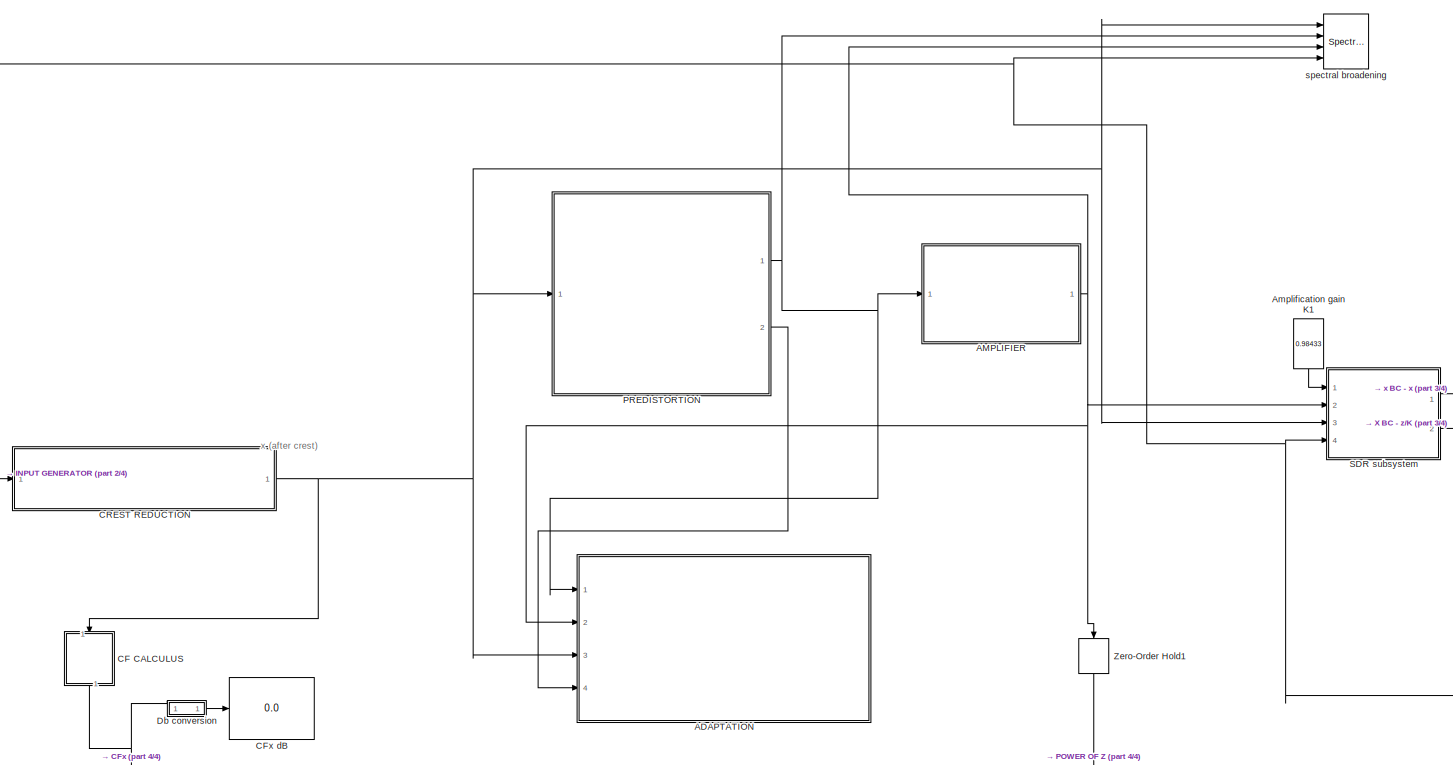
[diagram: root canvas - part 1/4, central region]
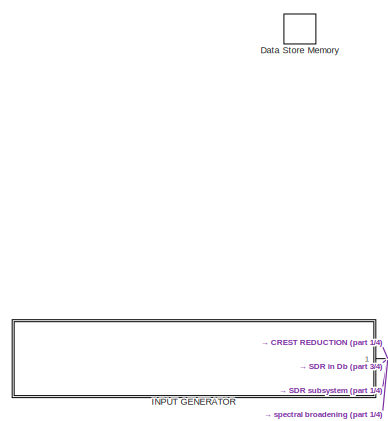
[diagram: root canvas - part 2/4, top left region]
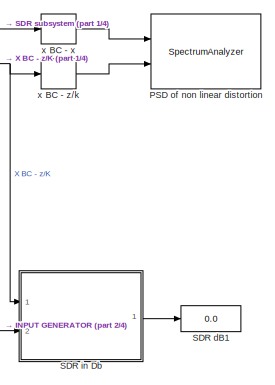
[diagram: root canvas - part 3/4, middle right region]
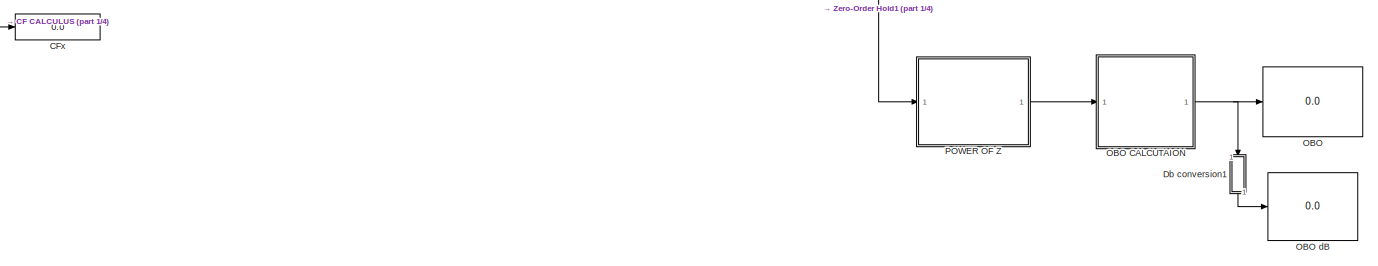
[diagram: root canvas - part 4/4, bottom center region]
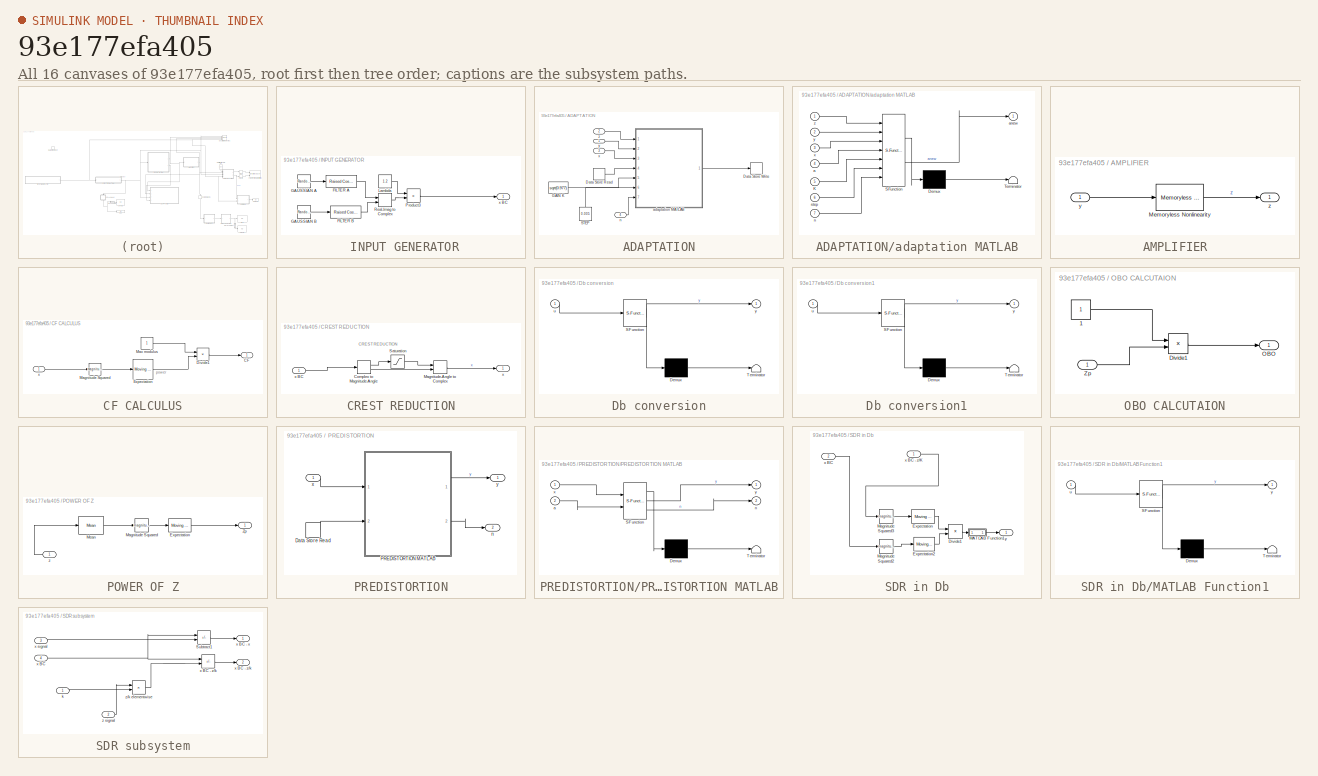
[diagram: thumbnail index - all 16 canvases of the model, root first then tree order]
MODEL slx_93e177efa405
KIND model
CONFIG AbsTol = auto
CONFIG EnableMultiTasking = off
CONFIG FixedStep = auto
CONFIG MaxStep = auto
CONFIG MinStep = auto
CONFIG RelTol = 1e-3
CONFIG SampleTimeConstraint = Unconstrained
CONFIG SolverName = VariableStepAuto
CONFIG StartTime = 0.0
CONFIG StopTime = 0.01
BLOCK [Display]  CFx
  Decimation = 1
  Ports = [1]
BLOCK [Display]  CFx dB
  Decimation = 1
  Ports = [1]
BLOCK [SubSystem]  INPUT GENERATOR
  Ports = [0, 1]
  RequestExecContextInheritance = off
BLOCK [Reference]  INPUT GENERATOR/FILTER A  REF=commfilt2/Raised Cosine
Transmit Filter
  Ports = [1, 1]
  SourceBlock = commfilt2/Raised Cosine\nTransmit Filter
  SourceProductBaseCode = CM
  SourceType = Raised Cosine Transmit Filter
BLOCK [Reference]  INPUT GENERATOR/FILTER B  REF=commfilt2/Raised Cosine
Transmit Filter
  Ports = [1, 1]
  SourceBlock = commfilt2/Raised Cosine\nTransmit Filter
  SourceProductBaseCode = CM
  SourceType = Raised Cosine Transmit Filter
BLOCK [RandomNumber]  INPUT GENERATOR/GAUSSIAN A
  SampleTime = 2e-7
  Seed = 1
  Variance = 0.5
BLOCK [RandomNumber]  INPUT GENERATOR/GAUSSIAN B
  SampleTime = 2e-7
  Seed = 2
  Variance = 0.5
BLOCK [Constant]  INPUT GENERATOR/Lambda
  NameLocation = top
  Value = 1.2
BLOCK [Product]  INPUT GENERATOR/Product3
  Ports = [2, 1]
BLOCK [RealImagToComplex]  INPUT GENERATOR/Real-Imag to Complex
  Ports = [2, 1]
BLOCK [Outport]  INPUT GENERATOR/x BC
BLOCK [Display]  OBO
  Decimation = 1
  Ports = [1]
BLOCK [Display]  OBO dB
  Decimation = 1
  Ports = [1]
BLOCK [SubSystem] ADAPTATION
  Ports = [4]
  RequestExecContextInheritance = off
BLOCK [DataStoreRead] ADAPTATION/Data Store Read
  DataStoreName = a
  IndexOptions = Index vector (dialog)
  Indices = 1
  OutputSizes = 1
  Ports = [0, 1]
BLOCK [DataStoreWrite] ADAPTATION/Data Store Write
  DataStoreName = a
  IndexOptions = Index vector (dialog)
  Indices = 1
  OutputSizes = 1
  Ports = [1]
BLOCK [Constant] ADAPTATION/GAIN K
  Value = sqrt(0.977)
BLOCK [Constant] ADAPTATION/STEP
  NameLocation = right
  Value = 0.005
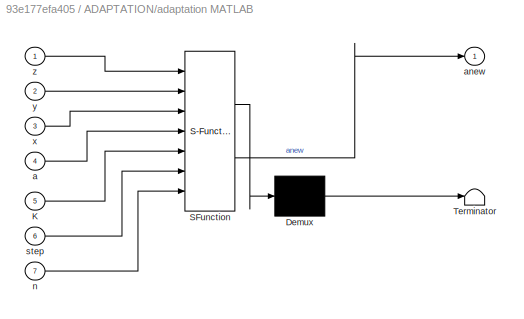
BLOCK [SubSystem] ADAPTATION/adaptation MATLAB
  ErrorFcn = Stateflow.Translate.translate
  PermitHierarchicalResolution = ExplicitOnly
  Ports = [7, 1]
  RequestExecContextInheritance = off
  SFBlockType = MATLAB Function
  TreatAsAtomicUnit = on
BLOCK [Demux] ADAPTATION/adaptation MATLAB/ Demux 
  Outputs = 1
  Ports = [1, 1]
BLOCK [S-Function] ADAPTATION/adaptation MATLAB/ SFunction 
  EnableBusSupport = on
  FunctionName = sf_sfun
  PortCounts = [7 2]
  Ports = [7, 2]
  SFcnIsStateOwnerBlock = off
  SFunctionDeploymentMode = off
  Tag = Stateflow S-Function 3
BLOCK [Terminator] ADAPTATION/adaptation MATLAB/ Terminator 
BLOCK [Inport] ADAPTATION/adaptation MATLAB/K
  Port = 5
BLOCK [Inport] ADAPTATION/adaptation MATLAB/a
  Port = 4
BLOCK [Outport] ADAPTATION/adaptation MATLAB/anew
BLOCK [Inport] ADAPTATION/adaptation MATLAB/n
  Port = 7
BLOCK [Inport] ADAPTATION/adaptation MATLAB/step
  Port = 6
BLOCK [Inport] ADAPTATION/adaptation MATLAB/x
  Port = 3
BLOCK [Inport] ADAPTATION/adaptation MATLAB/y
  Port = 2
BLOCK [Inport] ADAPTATION/adaptation MATLAB/z
BLOCK [Inport] ADAPTATION/n
  Port = 4
BLOCK [Inport] ADAPTATION/x
  Port = 3
BLOCK [Inport] ADAPTATION/y
BLOCK [Inport] ADAPTATION/z
  Port = 2
BLOCK [SubSystem] AMPLIFIER
  Ports = [1, 1]
  RequestExecContextInheritance = off
BLOCK [Reference] AMPLIFIER/Memoryless Nonlinearity  REF=commrflib2/Memoryless
Nonlinearity
  Ports = [1, 1]
  SourceBlock = commrflib2/Memoryless\nNonlinearity
  SourceProductBaseCode = CM
  SourceType = Memoryless Nonlinearity
BLOCK [Inport] AMPLIFIER/y
BLOCK [Outport] AMPLIFIER/z
BLOCK [Constant] Amplification gain K1
  NameLocation = left
  Value = 0.98433
BLOCK [SubSystem] CF CALCULUS
  NameLocation = left
  Ports = [1, 1]
  RequestExecContextInheritance = off
BLOCK [Outport] CF CALCULUS/CF
BLOCK [Product] CF CALCULUS/Divide1
  Inputs = */
  Ports = [2, 1]
BLOCK [Reference] CF CALCULUS/Expectation  REF=dspstat3/Moving
Average
  Ports = [1, 1]
  SourceBlock = dspstat3/Moving\nAverage
  SourceProductBaseCode = DS
  SourceType = dsp.simulink.MovingAverage
BLOCK [Math] CF CALCULUS/Magnitude Squared
  Operator = magnitude^2
  Ports = [1, 1]
BLOCK [Constant] CF CALCULUS/Max modulus
BLOCK [Inport] CF CALCULUS/x
BLOCK [SubSystem] CREST REDUCTION
  Ports = [1, 1]
  RequestExecContextInheritance = off
BLOCK [ComplexToMagnitudeAngle] CREST REDUCTION/Complex to Magnitude-Angle
  Ports = [1, 2]
BLOCK [MagnitudeAngleToComplex] CREST REDUCTION/Magnitude-Angle to Complex
  Ports = [2, 1]
BLOCK [Saturate] CREST REDUCTION/Saturation
  LinearizeAsGain = off
  LowerLimit = 0
  UpperLimit = 1
BLOCK [Outport] CREST REDUCTION/x 
BLOCK [Inport] CREST REDUCTION/x BC
BLOCK [DataStoreMemory] Data Store Memory
  DataStoreName = a
  InitialValue = ones(1,21) + 1i*zeros(1,21)
  ReadBeforeWriteMsg = warning
  ShowAdditionalParam = off
  SignalType = complex
  WriteAfterReadMsg = warning
  WriteAfterWriteMsg = warning
BLOCK [SubSystem] Db conversion
  ErrorFcn = Stateflow.Translate.translate
  PermitHierarchicalResolution = ExplicitOnly
  Ports = [1, 1]
  RequestExecContextInheritance = off
  SFBlockType = MATLAB Function
  TreatAsAtomicUnit = on
BLOCK [Demux] Db conversion/ Demux 
  Outputs = 1
  Ports = [1, 1]
BLOCK [S-Function] Db conversion/ SFunction 
  EnableBusSupport = on
  FunctionName = sf_sfun
  PortCounts = [1 2]
  Ports = [1, 2]
  SFcnIsStateOwnerBlock = off
  SFunctionDeploymentMode = off
  Tag = Stateflow S-Function 5
BLOCK [Terminator] Db conversion/ Terminator 
BLOCK [Inport] Db conversion/u
BLOCK [Outport] Db conversion/y
BLOCK [SubSystem] Db conversion1
  ErrorFcn = Stateflow.Translate.translate
  NameLocation = left
  PermitHierarchicalResolution = ExplicitOnly
  Ports = [1, 1]
  RequestExecContextInheritance = off
  SFBlockType = MATLAB Function
  TreatAsAtomicUnit = on
BLOCK [Demux] Db conversion1/ Demux 
  Outputs = 1
  Ports = [1, 1]
BLOCK [S-Function] Db conversion1/ SFunction 
  EnableBusSupport = on
  FunctionName = sf_sfun
  PortCounts = [1 2]
  Ports = [1, 2]
  SFcnIsStateOwnerBlock = off
  SFunctionDeploymentMode = off
  Tag = Stateflow S-Function 2
BLOCK [Terminator] Db conversion1/ Terminator 
BLOCK [Inport] Db conversion1/u
BLOCK [Outport] Db conversion1/y
BLOCK [SubSystem] OBO CALCUTAION
  Ports = [1, 1]
  RequestExecContextInheritance = off
BLOCK [Constant] OBO CALCUTAION/1
BLOCK [Product] OBO CALCUTAION/Divide1
  Inputs = */
  Ports = [2, 1]
BLOCK [Outport] OBO CALCUTAION/OBO
BLOCK [Inport] OBO CALCUTAION/Zp
BLOCK [SubSystem] POWER OF Z
  Ports = [1, 1]
  RequestExecContextInheritance = off
BLOCK [Reference] POWER OF Z/Expectation  REF=dspstat3/Moving
Average
  Ports = [1, 1]
  SourceBlock = dspstat3/Moving\nAverage
  SourceProductBaseCode = DS
  SourceType = dsp.simulink.MovingAverage
BLOCK [Math] POWER OF Z/Magnitude Squared
  Operator = magnitude^2
  Ports = [1, 1]
BLOCK [Reference] POWER OF Z/Mean  REF=dspstat3/Mean
  Ports = [1, 1]
  SourceBlock = dspstat3/Mean
  SourceProductBaseCode = DS
  SourceType = Mean
  UserDataPersistent = on
BLOCK [Outport] POWER OF Z/Zp
BLOCK [Inport] POWER OF Z/z
BLOCK [SubSystem] PREDISTORTION
  Ports = [1, 2]
  RequestExecContextInheritance = off
BLOCK [DataStoreRead] PREDISTORTION/Data Store Read
  DataStoreName = a
  IndexOptions = Index vector (dialog)
  Indices = 1
  OutputSizes = 1
  Ports = [0, 1]
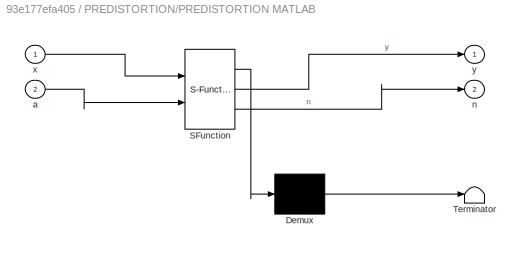
BLOCK [SubSystem] PREDISTORTION/PREDISTORTION MATLAB
  ErrorFcn = Stateflow.Translate.translate
  PermitHierarchicalResolution = ExplicitOnly
  Ports = [2, 2]
  RequestExecContextInheritance = off
  SFBlockType = MATLAB Function
  TreatAsAtomicUnit = on
BLOCK [Demux] PREDISTORTION/PREDISTORTION MATLAB/ Demux 
  Outputs = 1
  Ports = [1, 1]
BLOCK [S-Function] PREDISTORTION/PREDISTORTION MATLAB/ SFunction 
  EnableBusSupport = on
  FunctionName = sf_sfun
  PortCounts = [2 3]
  Ports = [2, 3]
  SFcnIsStateOwnerBlock = off
  SFunctionDeploymentMode = off
  Tag = Stateflow S-Function 1
BLOCK [Terminator] PREDISTORTION/PREDISTORTION MATLAB/ Terminator 
BLOCK [Inport] PREDISTORTION/PREDISTORTION MATLAB/a
  Port = 2
BLOCK [Outport] PREDISTORTION/PREDISTORTION MATLAB/n
  Port = 2
BLOCK [Inport] PREDISTORTION/PREDISTORTION MATLAB/x
BLOCK [Outport] PREDISTORTION/PREDISTORTION MATLAB/y
BLOCK [Outport] PREDISTORTION/n
  Port = 2
BLOCK [Inport] PREDISTORTION/x
BLOCK [Outport] PREDISTORTION/y
BLOCK [SpectrumAnalyzer] PSD of non linear distortion
  NumInputPorts = 2
  Ports = [2]
  ScopeSpecificationString = spbscopes.SpectrumAnalyzerBlockCfg('CurrentConfiguration', extmgr.ConfigurationSet(extmgr.Configuration('Core','General UI',true),extmgr.Configuration('Core','Source UI',true),extmgr.Configuration('Sources','WiredSimulink',true),extmgr.Configuration('Visuals','Spectrum',true,'AxesProperties',struct('Color',{[0 0 0],[0 0 0]},'XColor',{[0.686274509803922 0.686274509803922 0.686274509803922],[0.68627...<+2064ch>
BLOCK [Display] SDR dB1
  Decimation = 1
  Ports = [1]
BLOCK [SubSystem] SDR in Db
  Ports = [2, 1]
  RequestExecContextInheritance = off
BLOCK [Product] SDR in Db/Divide1
  Inputs = /*
  Ports = [2, 1]
BLOCK [Reference] SDR in Db/Expectation  REF=dspstat3/Moving
Average
  Ports = [1, 1]
  SourceBlock = dspstat3/Moving\nAverage
  SourceProductBaseCode = DS
  SourceType = dsp.simulink.MovingAverage
BLOCK [Reference] SDR in Db/Expectation2  REF=dspstat3/Moving
Average
  Ports = [1, 1]
  SourceBlock = dspstat3/Moving\nAverage
  SourceProductBaseCode = DS
  SourceType = dsp.simulink.MovingAverage
BLOCK [SubSystem] SDR in Db/MATLAB Function1
  ErrorFcn = Stateflow.Translate.translate
  PermitHierarchicalResolution = ExplicitOnly
  Ports = [1, 1]
  RequestExecContextInheritance = off
  SFBlockType = MATLAB Function
  TreatAsAtomicUnit = on
BLOCK [Demux] SDR in Db/MATLAB Function1/ Demux 
  Outputs = 1
  Ports = [1, 1]
BLOCK [S-Function] SDR in Db/MATLAB Function1/ SFunction 
  EnableBusSupport = on
  FunctionName = sf_sfun
  PortCounts = [1 2]
  Ports = [1, 2]
  SFcnIsStateOwnerBlock = off
  SFunctionDeploymentMode = off
  Tag = Stateflow S-Function 4
BLOCK [Terminator] SDR in Db/MATLAB Function1/ Terminator 
BLOCK [Inport] SDR in Db/MATLAB Function1/u
BLOCK [Outport] SDR in Db/MATLAB Function1/y
BLOCK [Math] SDR in Db/Magnitude Squared2
  Operator = magnitude^2
  Ports = [1, 1]
BLOCK [Math] SDR in Db/Magnitude Squared3
  Operator = magnitude^2
  Ports = [1, 1]
BLOCK [Inport] SDR in Db/x BC
  Port = 2
BLOCK [Inport] SDR in Db/x BC - z//K
BLOCK [Outport] SDR in Db/y
BLOCK [SubSystem] SDR subsystem
  Ports = [4, 2]
  RequestExecContextInheritance = off
BLOCK [Product] SDR subsystem/     z//k elementwise
  Inputs = */
  Ports = [2, 1]
BLOCK [Sum] SDR subsystem/    x BC - z//k
  IconShape = rectangular
  Inputs = +-
  Ports = [2, 1]
BLOCK [Inport] SDR subsystem/ x signal
  Port = 3
BLOCK [Sum] SDR subsystem/Subtract1
  IconShape = rectangular
  Inputs = +-
  Ports = [2, 1]
BLOCK [Inport] SDR subsystem/k
BLOCK [Inport] SDR subsystem/x BC
  Port = 4
BLOCK [Outport] SDR subsystem/x BC  - z//k
  Port = 2
BLOCK [Outport] SDR subsystem/x BC - x
BLOCK [Inport] SDR subsystem/z signal
  Port = 2
BLOCK [ZeroOrderHold] Zero-Order Hold1
  NameLocation = left
  SampleTime = -1
BLOCK [SpectrumAnalyzer] spectral broadening
  NumInputPorts = 4
  Ports = [4]
  ScopeSpecificationString = spbscopes.SpectrumAnalyzerBlockCfg('CurrentConfiguration', extmgr.ConfigurationSet(extmgr.Configuration('Core','General UI',true),extmgr.Configuration('Core','Source UI',true),extmgr.Configuration('Sources','WiredSimulink',true),extmgr.Configuration('Visuals','Spectrum',true,'AxesProperties',struct('Color',{[0 0 0],[0 0 0]},'XColor',{[0.686274509803922 0.686274509803922 0.686274509803922],[0.68627...<+2619ch>
BLOCK [ZeroOrderHold] x BC - x
  SampleTime = -1
BLOCK [ZeroOrderHold] x BC - z//k
  SampleTime = -1
ANNOTATION (root): x (after crest)
ANNOTATION CF CALCULUS: power
ANNOTATION CREST REDUCTION: CREST REDUCTION
LINE  INPUT GENERATOR/FILTER A:1 ->  INPUT GENERATOR/Real-Imag to Complex:1
LINE  INPUT GENERATOR/FILTER B:1 ->  INPUT GENERATOR/Real-Imag to Complex:2
LINE  INPUT GENERATOR/GAUSSIAN A:1 ->  INPUT GENERATOR/FILTER A:1
LINE  INPUT GENERATOR/GAUSSIAN B:1 ->  INPUT GENERATOR/FILTER B:1
LINE  INPUT GENERATOR/Lambda:1 ->  INPUT GENERATOR/Product3:1
LINE  INPUT GENERATOR/Product3:1 ->  INPUT GENERATOR/x BC:1
LINE  INPUT GENERATOR/Real-Imag to Complex:1 ->  INPUT GENERATOR/Product3:2
NET  INPUT GENERATOR:1 -> CREST REDUCTION:1, SDR in Db:2, SDR subsystem:4, spectral broadening:4
LINE ADAPTATION/Data Store Read:1 -> ADAPTATION/adaptation MATLAB:4
LINE ADAPTATION/GAIN K:1 -> ADAPTATION/adaptation MATLAB:5
LINE ADAPTATION/STEP:1 -> ADAPTATION/adaptation MATLAB:6
LINE ADAPTATION/adaptation MATLAB:1 -> ADAPTATION/Data Store Write:1
LINE ADAPTATION/n:1 -> ADAPTATION/adaptation MATLAB:7
LINE ADAPTATION/x:1 -> ADAPTATION/adaptation MATLAB:3
LINE ADAPTATION/y:1 -> ADAPTATION/adaptation MATLAB:2
LINE ADAPTATION/z:1 -> ADAPTATION/adaptation MATLAB:1
LINE AMPLIFIER/Memoryless Nonlinearity:1 -> AMPLIFIER/z:1
LINE AMPLIFIER/y:1 -> AMPLIFIER/Memoryless Nonlinearity:1
NET AMPLIFIER:1 -> ADAPTATION:2, SDR subsystem:2, Zero-Order Hold1:1, spectral broadening:3
LINE Amplification gain K1:1 -> SDR subsystem:1
LINE CF CALCULUS/Divide1:1 -> CF CALCULUS/CF:1
LINE CF CALCULUS/Expectation:1 -> CF CALCULUS/Divide1:2
LINE CF CALCULUS/Magnitude Squared:1 -> CF CALCULUS/Expectation:1
LINE CF CALCULUS/Max modulus:1 -> CF CALCULUS/Divide1:1
LINE CF CALCULUS/x:1 -> CF CALCULUS/Magnitude Squared:1
NET CF CALCULUS:1 ->  CFx:1, Db conversion:1
LINE CREST REDUCTION/Complex to Magnitude-Angle:1 -> CREST REDUCTION/Saturation:1
LINE CREST REDUCTION/Complex to Magnitude-Angle:2 -> CREST REDUCTION/Magnitude-Angle to Complex:2
LINE CREST REDUCTION/Magnitude-Angle to Complex:1 -> CREST REDUCTION/x :1
LINE CREST REDUCTION/Saturation:1 -> CREST REDUCTION/Magnitude-Angle to Complex:1
LINE CREST REDUCTION/x BC:1 -> CREST REDUCTION/Complex to Magnitude-Angle:1
NET CREST REDUCTION:1 -> ADAPTATION:3, CF CALCULUS:1, PREDISTORTION:1, SDR subsystem:3, spectral broadening:1
LINE Db conversion1:1 ->  OBO dB:1
LINE Db conversion:1 ->  CFx dB:1
LINE OBO CALCUTAION/1:1 -> OBO CALCUTAION/Divide1:1
LINE OBO CALCUTAION/Divide1:1 -> OBO CALCUTAION/OBO:1
LINE OBO CALCUTAION/Zp:1 -> OBO CALCUTAION/Divide1:2
NET OBO CALCUTAION:1 ->  OBO:1, Db conversion1:1
LINE POWER OF Z/Expectation:1 -> POWER OF Z/Zp:1
LINE POWER OF Z/Magnitude Squared:1 -> POWER OF Z/Expectation:1
LINE POWER OF Z/Mean:1 -> POWER OF Z/Magnitude Squared:1
LINE POWER OF Z/z:1 -> POWER OF Z/Mean:1
LINE POWER OF Z:1 -> OBO CALCUTAION:1
LINE PREDISTORTION/Data Store Read:1 -> PREDISTORTION/PREDISTORTION MATLAB:2
LINE PREDISTORTION/PREDISTORTION MATLAB:1 -> PREDISTORTION/y:1
LINE PREDISTORTION/PREDISTORTION MATLAB:2 -> PREDISTORTION/n:1
LINE PREDISTORTION/x:1 -> PREDISTORTION/PREDISTORTION MATLAB:1
NET PREDISTORTION:1 -> ADAPTATION:1, AMPLIFIER:1, spectral broadening:2
LINE PREDISTORTION:2 -> ADAPTATION:4
LINE SDR in Db/Divide1:1 -> SDR in Db/MATLAB Function1:1
LINE SDR in Db/Expectation2:1 -> SDR in Db/Divide1:2
LINE SDR in Db/Expectation:1 -> SDR in Db/Divide1:1
LINE SDR in Db/MATLAB Function1:1 -> SDR in Db/y:1
LINE SDR in Db/Magnitude Squared2:1 -> SDR in Db/Expectation2:1
LINE SDR in Db/Magnitude Squared3:1 -> SDR in Db/Expectation:1
LINE SDR in Db/x BC - z//K:1 -> SDR in Db/Magnitude Squared3:1
LINE SDR in Db/x BC:1 -> SDR in Db/Magnitude Squared2:1
LINE SDR in Db:1 -> SDR dB1:1
LINE SDR subsystem/     z//k elementwise:1 -> SDR subsystem/    x BC - z//k:2
LINE SDR subsystem/    x BC - z//k:1 -> SDR subsystem/x BC  - z//k:1
LINE SDR subsystem/ x signal:1 -> SDR subsystem/Subtract1:2
LINE SDR subsystem/Subtract1:1 -> SDR subsystem/x BC - x:1
LINE SDR subsystem/k:1 -> SDR subsystem/     z//k elementwise:2
NET SDR subsystem/x BC:1 -> SDR subsystem/    x BC - z//k:1, SDR subsystem/Subtract1:1
LINE SDR subsystem/z signal:1 -> SDR subsystem/     z//k elementwise:1
LINE SDR subsystem:1 -> x BC - x:1
NET SDR subsystem:2 -> SDR in Db:1, x BC - z//k:1
LINE Zero-Order Hold1:1 -> POWER OF Z:1
LINE x BC - x:1 -> PSD of non linear distortion:1
LINE x BC - z//k:1 -> PSD of non linear distortion:2
note: NET lines group one-source signal fan-out (src -> all destinations, sorted); 1:1 wires keep LINE
CHART PREDISTORTION/PREDISTORTION MATLAB states=1 transitions=1
  STATE_LABEL 'eML_blk_kernel()'
  STATE_LABEL 'SCRIPT:\nfunction [y,n] = predistort(x, a)\n%N=20 \n\nN = 20;\n\ndelta = 1/(2*N);\n\nI = [delta: 2*delta: 1 inf];\n%VETTORE CHE VIENE SOVRASCRITTO PER TROVARE LA A \nk = [1 : N+1 ];\nk = find(abs(x)<=I);\nn=k(1);\n\nP = ((abs(x) -(2*n+1)*delta) * (a(min(n+1,N+1)) -a(n)) / (2*delta)) + ((a(min(n+1,N+1)) *a(n)) /2);\n\n\ny = complex(P* x);\n'
CHART Db conversion1 states=1 transitions=1
  STATE_LABEL 'eML_blk_kernel()'
  STATE_LABEL 'SCRIPT:\nfunction y = lintodb(u)\ny = 10.*log10(u);\n'
CHART ADAPTATION/adaptation MATLAB states=1 transitions=1
  STATE_LABEL 'eML_blk_kernel()'
  STATE_LABEL 'SCRIPT:\nfunction anew = adapt(z, y, x, a, K, step,n)\nasub = a;\n    \n    \n  \nasub(n) = asub(n) - step*(z-K*x)*conj(z)*conj(x)/conj(y);\n                %formula from slide 28. The gradient is implemented using a\n                %small constant (step) multiplied by k, that increases.\n                \nanew = asub;\nend\n'
CHART SDR in Db/MATLAB Function1 states=1 transitions=1
  STATE_LABEL 'eML_blk_kernel()'
  STATE_LABEL 'SCRIPT:\nfunction y = lintodb(u)\ny = mean(10.*log10(u));\n'
CHART Db conversion states=1 transitions=1
  STATE_LABEL 'eML_blk_kernel()'
  STATE_LABEL 'SCRIPT:\nfunction y = lintodb(u)\ny = mean(10.*log10(u));\n'
CHART  states=0 transitions=0
CHART  states=0 transitions=0
CHART  states=0 transitions=0
CHART  states=0 transitions=0
CHART  states=0 transitions=0
